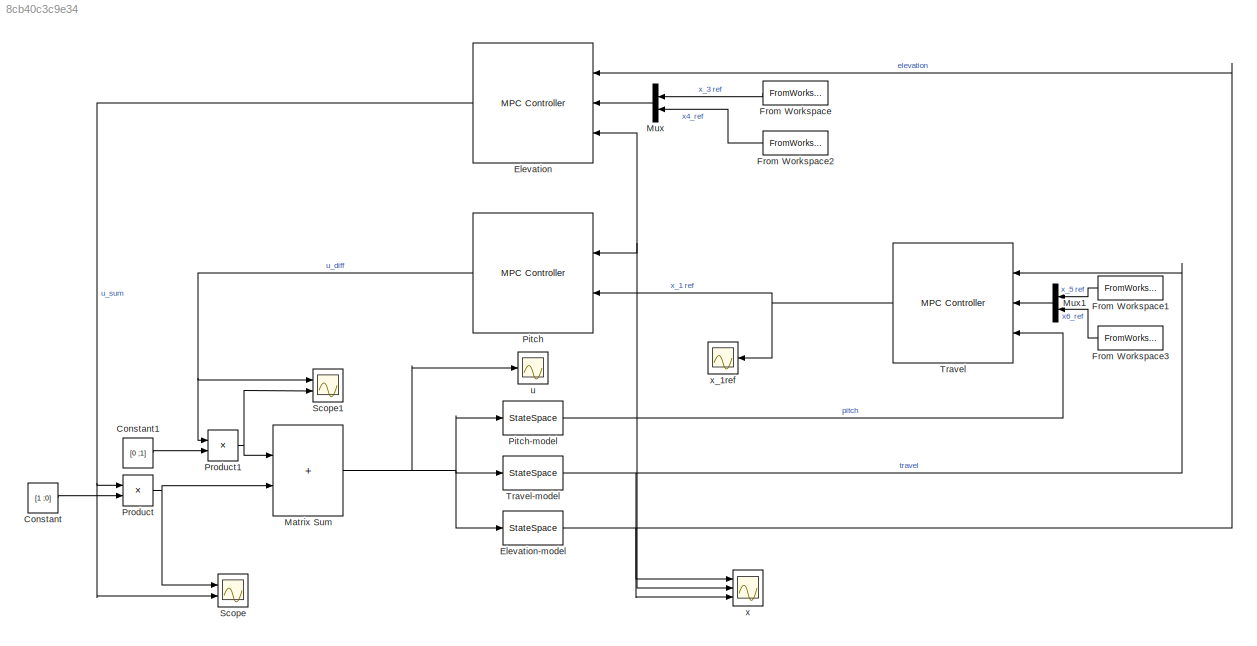
MODEL slx_8cb40c3c9e34
KIND model
CONFIG AbsTol = auto
CONFIG EnableMultiTasking = off
CONFIG FixedStep = auto
CONFIG MaxStep = auto
CONFIG MinStep = auto
CONFIG RelTol = 1e-3
CONFIG SampleTimeConstraint = Unconstrained
CONFIG SolverName = VariableStepAuto
CONFIG StartTime = 0.0
CONFIG StopTime = 10.0
BLOCK [Constant] Constant
  Value = [1 ;0]
  VectorParams1D = off
BLOCK [Constant] Constant1
  Value = [0  ;1]
  VectorParams1D = off
BLOCK [Reference] Elevation  REF=mpclib/MPC Controller  (lib defined in mdl_ae329e0e0455)
  NameLocation = top
  Ports = [3, 1]
  SCDEnableBlockLinearizationSpecification = on
  SourceBlock = mpclib/MPC Controller
  SourceProductBaseCode = MP
  SourceType = MPC
BLOCK [StateSpace] Elevation-model
  A = A_elev
  B = B_elev
  C = C_elev
  D = D_elev
  InitialCondition = pitch_min
  Ports = [1, 1]
BLOCK [FromWorkspace] From Workspace
  NameLocation = top
  OutputAfterFinalValue = Holding final value
  SampleTime = 0.1
  VariableName = x3_ref
BLOCK [FromWorkspace] From Workspace1
  NameLocation = top
  OutputAfterFinalValue = Holding final value
  SampleTime = 0.1
  VariableName = x5_ref
BLOCK [FromWorkspace] From Workspace2
  NameLocation = top
  VariableName = x4_ref
BLOCK [FromWorkspace] From Workspace3
  NameLocation = top
  VariableName = x6_ref
BLOCK [Sum] Matrix Sum
  IconShape = rectangular
  Ports = [2, 1]
BLOCK [Mux] Mux
  DisplayOption = bar
  Inputs = 2
  NameLocation = top
  Ports = [2, 1]
BLOCK [Mux] Mux1
  DisplayOption = bar
  Inputs = 2
  NameLocation = top
  Ports = [2, 1]
BLOCK [Reference] Pitch  REF=mpclib/MPC Controller  (lib defined in mdl_ae329e0e0455)
  NameLocation = top
  Ports = [2, 1]
  SCDEnableBlockLinearizationSpecification = on
  SourceBlock = mpclib/MPC Controller
  SourceProductBaseCode = MP
  SourceType = MPC
BLOCK [StateSpace] Pitch-model
  A = A_pitch
  B = B_pitch
  C = C_pitch
  D = D_pitch
  InitialCondition = 0
  Ports = [1, 1]
BLOCK [Product] Product
  Ports = [2, 1]
BLOCK [Product] Product1
  Ports = [2, 1]
BLOCK [Scope] Scope
  Floating = off
  NumInputPorts = 2
  Ports = [2]
  ScopeSpecificationString = Simulink.scopes.TimeScopeBlockCfg('CurrentConfiguration', extmgr.ConfigurationSet(extmgr.Configuration('Core','General UI',true),extmgr.Configuration('Core','Source UI',true),extmgr.Configuration('Sources','WiredSimulink',true,'DataLoggingVariableName','ScopeData1'),extmgr.Configuration('Visuals','Time Domain',true,'SerializedDisplays',{struct('MinYLimReal','-0.09055','MaxYLimReal','0.81498','YLab...<+1544ch>
BLOCK [Scope] Scope1
  Floating = off
  NumInputPorts = 2
  Ports = [2]
  ScopeSpecificationString = Simulink.scopes.TimeScopeBlockCfg('CurrentConfiguration', extmgr.ConfigurationSet(extmgr.Configuration('Core','General UI',true),extmgr.Configuration('Core','Source UI',true),extmgr.Configuration('Sources','WiredSimulink',true,'DataLoggingVariableName','ScopeData2'),extmgr.Configuration('Visuals','Time Domain',true,'SerializedDisplays',{struct('MinYLimReal','-0.30986','MaxYLimReal','0.42332','YLab...<+1503ch>
BLOCK [Reference] Travel  REF=mpclib/MPC Controller  (lib defined in mdl_ae329e0e0455)
  NameLocation = top
  Ports = [3, 1]
  SCDEnableBlockLinearizationSpecification = on
  SourceBlock = mpclib/MPC Controller
  SourceProductBaseCode = MP
  SourceType = MPC
BLOCK [StateSpace] Travel-model
  A = A_travel
  B = B_travel
  C = C_travel
  D = D_travel
  InitialCondition = 0
  Ports = [1, 1]
BLOCK [Scope] u
  Floating = off
  NumInputPorts = 1
  Ports = [1]
  ScopeSpecificationString = Simulink.scopes.TimeScopeBlockCfg('CurrentConfiguration', extmgr.ConfigurationSet(extmgr.Configuration('Core','General UI',true),extmgr.Configuration('Core','Source UI',true),extmgr.Configuration('Sources','WiredSimulink',true,'DataLoggingVariableName','ScopeData2'),extmgr.Configuration('Visuals','Time Domain',true,'SerializedDisplays',{struct('MinYLimReal','-0.36','MaxYLimReal','0.84','YLabelReal...<+1506ch>
BLOCK [Scope] x
  Floating = off
  NumInputPorts = 3
  Ports = [3]
  ScopeSpecificationString = Simulink.scopes.TimeScopeBlockCfg('CurrentConfiguration', extmgr.ConfigurationSet(extmgr.Configuration('Core','General UI',true),extmgr.Configuration('Core','Source UI',true),extmgr.Configuration('Sources','WiredSimulink',true,'DataLoggingVariableName','ScopeData1'),extmgr.Configuration('Visuals','Time Domain',true,'SerializedDisplays',{struct('MinYLimReal','-3.67622','MaxYLimReal','10.8913','YLab...<+1760ch>
BLOCK [Scope] x_1ref
  Floating = off
  NumInputPorts = 1
  Ports = [1]
  ScopeSpecificationString = Simulink.scopes.TimeScopeBlockCfg('CurrentConfiguration', extmgr.ConfigurationSet(extmgr.Configuration('Core','General UI',true),extmgr.Configuration('Core','Source UI',true),extmgr.Configuration('Sources','WiredSimulink',true,'DataLoggingVariableName','ScopeData1'),extmgr.Configuration('Visuals','Time Domain',true,'SerializedDisplays',{struct('MinYLimReal','-0.98175','MaxYLimReal','0.98175','YLab...<+1420ch>
LINE Constant1:1 -> Product1:2
LINE Constant:1 -> Product:2
NET Elevation-model:1 -> Elevation:1, x:1
NET Elevation:1 -> Product:1, Scope:2
LINE From Workspace1:1 -> Mux1:1
LINE From Workspace2:1 -> Mux:2
LINE From Workspace3:1 -> Mux1:2
LINE From Workspace:1 -> Mux:1
NET Matrix Sum:1 -> Elevation-model:1, Pitch-model:1, Travel-model:1, u:1
LINE Mux1:1 -> Travel:2
LINE Mux:1 -> Elevation:2
NET Pitch-model:1 -> Elevation:3, Pitch:1, Travel:3, x:2
NET Pitch:1 -> Product1:1, Scope1:1
NET Product1:1 -> Matrix Sum:1, Scope1:2
NET Product:1 -> Matrix Sum:2, Scope:1
NET Travel-model:1 -> Travel:1, x:3
NET Travel:1 -> Pitch:2, x_1ref:1
note: NET lines group one-source signal fan-out (src -> all destinations, sorted); 1:1 wires keep LINE
